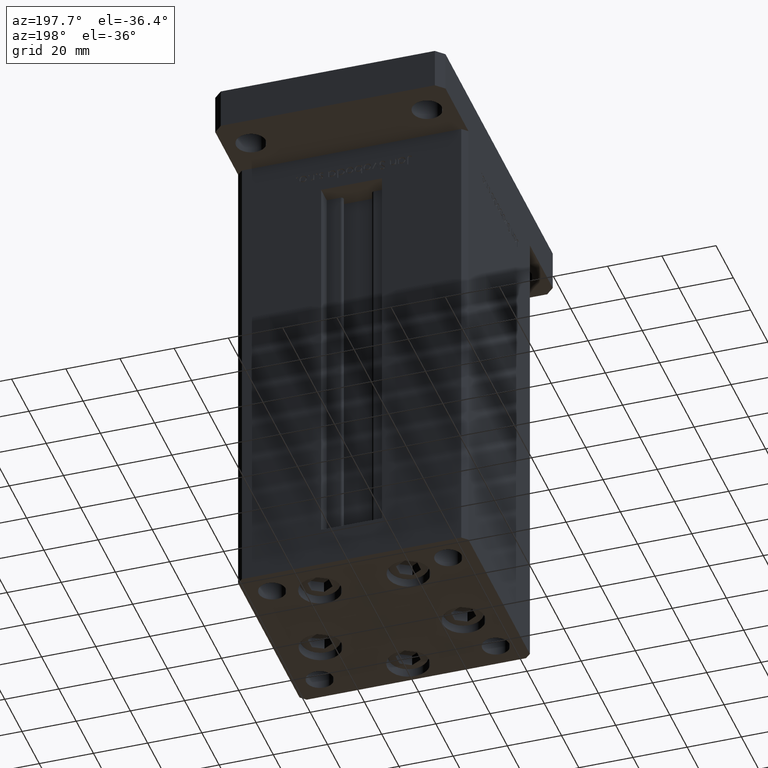
[diagram: clean part render]
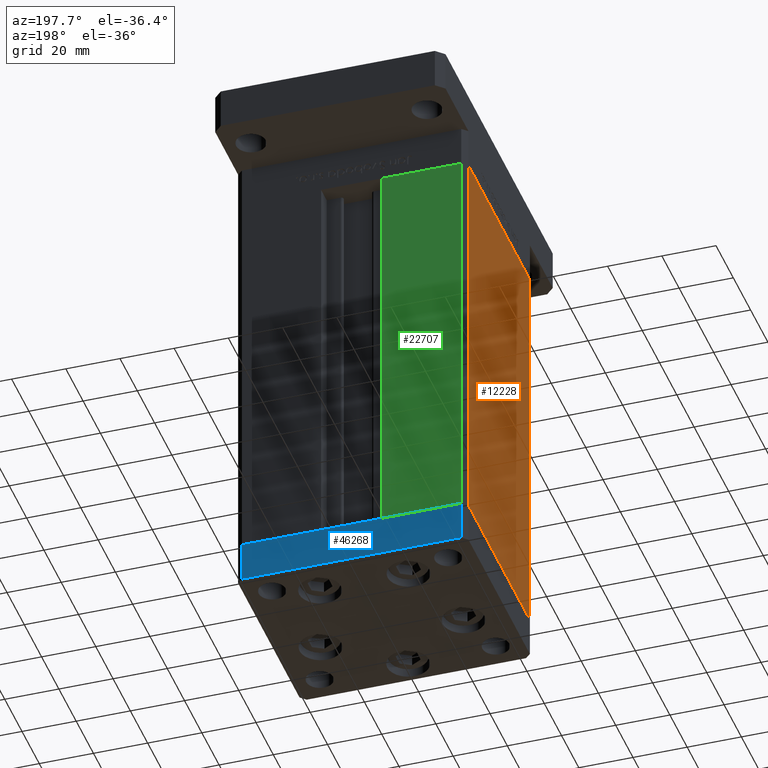
[diagram: same view with three faces highlighted in distinct colors, each labeled with its STEP entity id]
A machine part, auxiliary view with three faces highlighted in distinct colors.
Their STEP definitions:

[orange] entity #12228 — the highlighted planar face has unit normal (1, 0, 0).
#697 = VERTEX_POINT ( 'NONE', #13949 ) ;
#1500 = FACE_OUTER_BOUND ( 'NONE', #2649, .T. ) ;
#1995 = LINE ( 'NONE', #10388, #38906 ) ;
#2509 = DIRECTION ( 'NONE',  ( 2.931927001650941360E-16, -1.000000000000000000, 0.000000000000000000 ) ) ;
#2649 = EDGE_LOOP ( 'NONE', ( #13187, #16438, #18430, #20363 ) ) ;
#3210 = VERTEX_POINT ( 'NONE', #7617 ) ;
#3369 = PLANE ( 'NONE',  #52063 ) ;
#4156 = DIRECTION ( 'NONE',  ( -0.000000000000000000, -0.000000000000000000, -1.000000000000000000 ) ) ;
#6510 = CARTESIAN_POINT ( 'NONE',  ( -42.49999999999998579, -35.50000000000000711, 148.5000000000000000 ) ) ;
#6577 = LINE ( 'NONE', #43448, #39221 ) ;
#7183 = DIRECTION ( 'NONE',  ( 1.000000000000000000, 2.931927001650941360E-16, -0.000000000000000000 ) ) ;
#7617 = CARTESIAN_POINT ( 'NONE',  ( -42.50000000000000711, 35.50000000000001421, 148.5000000000000000 ) ) ;
#8780 = EDGE_CURVE ( 'NONE', #697, #48318, #1995, .T. ) ;
#9641 = VECTOR ( 'NONE', #33938, 1000.000000000000000 ) ;
#10388 = CARTESIAN_POINT ( 'NONE',  ( -42.50000000000000711, 35.50000000000001421, 0.000000000000000000 ) ) ;
#12228 = ADVANCED_FACE ( 'NONE', ( #1500 ), #3369, .F. ) ;
#12293 = CARTESIAN_POINT ( 'NONE',  ( -42.50000000000000711, 35.50000000000001421, 148.5000000000000000 ) ) ;
#13187 = ORIENTED_EDGE ( 'NONE', *, *, #8780, .T. ) ;
#13949 = CARTESIAN_POINT ( 'NONE',  ( -42.50000000000000711, 35.50000000000001421, 0.000000000000000000 ) ) ;
#14448 = VECTOR ( 'NONE', #4156, 1000.000000000000000 ) ;
#16438 = ORIENTED_EDGE ( 'NONE', *, *, #18972, .F. ) ;
#16597 = CARTESIAN_POINT ( 'NONE',  ( -42.49999999999998579, -35.50000000000000711, 148.5000000000000000 ) ) ;
#16864 = LINE ( 'NONE', #16597, #9641 ) ;
#18430 = ORIENTED_EDGE ( 'NONE', *, *, #22923, .F. ) ;
#18972 = EDGE_CURVE ( 'NONE', #23214, #48318, #16864, .T. ) ;
#20363 = ORIENTED_EDGE ( 'NONE', *, *, #38442, .T. ) ;
#22923 = EDGE_CURVE ( 'NONE', #3210, #23214, #6577, .T. ) ;
#23214 = VERTEX_POINT ( 'NONE', #6510 ) ;
#23414 = DIRECTION ( 'NONE',  ( 2.931927001650941360E-16, -1.000000000000000000, 0.000000000000000000 ) ) ;
#28211 = CARTESIAN_POINT ( 'NONE',  ( -42.49999999999998579, -35.50000000000000711, 0.000000000000000000 ) ) ;
#31608 = CARTESIAN_POINT ( 'NONE',  ( -42.50000000000000711, 35.50000000000001421, 148.5000000000000000 ) ) ;
#33938 = DIRECTION ( 'NONE',  ( -0.000000000000000000, -0.000000000000000000, -1.000000000000000000 ) ) ;
#38442 = EDGE_CURVE ( 'NONE', #3210, #697, #41294, .T. ) ;
#38906 = VECTOR ( 'NONE', #23414, 1000.000000000000000 ) ;
#39221 = VECTOR ( 'NONE', #2509, 1000.000000000000000 ) ;
#40509 = DIRECTION ( 'NONE',  ( -2.931927001650941360E-16, 1.000000000000000000, 0.000000000000000000 ) ) ;
#41294 = LINE ( 'NONE', #12293, #14448 ) ;
#43448 = CARTESIAN_POINT ( 'NONE',  ( -42.50000000000000711, 35.50000000000001421, 148.5000000000000000 ) ) ;
#48318 = VERTEX_POINT ( 'NONE', #28211 ) ;
#52063 = AXIS2_PLACEMENT_3D ( 'NONE', #31608, #7183, #40509 ) ;

[blue] entity #46268 — the highlighted planar face has unit normal (0, 1, 0).
#706 = EDGE_CURVE ( 'NONE', #18924, #43388, #27242, .T. ) ;
#1584 = DIRECTION ( 'NONE',  ( -1.000000000000000000, -3.426614273534436165E-16, 0.000000000000000000 ) ) ;
#6074 = DIRECTION ( 'NONE',  ( 0.000000000000000000, 0.000000000000000000, 1.000000000000000000 ) ) ;
#7394 = EDGE_CURVE ( 'NONE', #30791, #31664, #14610, .T. ) ;
#9276 = PLANE ( 'NONE',  #12089 ) ;
#10265 = CARTESIAN_POINT ( 'NONE',  ( 40.49999999999991473, 37.50000000000000711, -15.00000000000000000 ) ) ;
#12089 = AXIS2_PLACEMENT_3D ( 'NONE', #20959, #25826, #33691 ) ;
#12249 = LINE ( 'NONE', #38262, #13981 ) ;
#13626 = VECTOR ( 'NONE', #43764, 1000.000000000000000 ) ;
#13981 = VECTOR ( 'NONE', #29605, 1000.000000000000000 ) ;
#14278 = CARTESIAN_POINT ( 'NONE',  ( 40.49999999999991473, 37.50000000000000711, -15.00000000000000000 ) ) ;
#14610 = LINE ( 'NONE', #10265, #50929 ) ;
#15028 = LINE ( 'NONE', #31563, #33034 ) ;
#18924 = VERTEX_POINT ( 'NONE', #50211 ) ;
#18992 = EDGE_CURVE ( 'NONE', #31664, #43388, #12249, .T. ) ;
#19564 = EDGE_CURVE ( 'NONE', #30791, #18924, #15028, .T. ) ;
#20959 = CARTESIAN_POINT ( 'NONE',  ( 40.49999999999991473, 37.50000000000000711, -15.00000000000000000 ) ) ;
#25560 = FACE_OUTER_BOUND ( 'NONE', #42706, .T. ) ;
#25826 = DIRECTION ( 'NONE',  ( -3.426614273534436165E-16, 1.000000000000000000, 0.000000000000000000 ) ) ;
#26107 = ORIENTED_EDGE ( 'NONE', *, *, #19564, .F. ) ;
#27242 = LINE ( 'NONE', #30493, #13626 ) ;
#29605 = DIRECTION ( 'NONE',  ( 0.000000000000000000, 0.000000000000000000, 1.000000000000000000 ) ) ;
#29851 = ORIENTED_EDGE ( 'NONE', *, *, #706, .F. ) ;
#30493 = CARTESIAN_POINT ( 'NONE',  ( 40.49999999999991473, 37.50000000000000711, 0.000000000000000000 ) ) ;
#30791 = VERTEX_POINT ( 'NONE', #14278 ) ;
#31563 = CARTESIAN_POINT ( 'NONE',  ( 40.49999999999991473, 37.50000000000000711, -15.00000000000000000 ) ) ;
#31664 = VERTEX_POINT ( 'NONE', #40707 ) ;
#33034 = VECTOR ( 'NONE', #6074, 1000.000000000000000 ) ;
#33691 = DIRECTION ( 'NONE',  ( -1.000000000000000000, -3.426614273534436165E-16, 0.000000000000000000 ) ) ;
#38262 = CARTESIAN_POINT ( 'NONE',  ( -40.50000000000000711, 37.49999999999997868, -15.00000000000000000 ) ) ;
#40707 = CARTESIAN_POINT ( 'NONE',  ( -40.50000000000000711, 37.49999999999997868, -15.00000000000000000 ) ) ;
#42706 = EDGE_LOOP ( 'NONE', ( #29851, #26107, #53002, #53204 ) ) ;
#43388 = VERTEX_POINT ( 'NONE', #53377 ) ;
#43764 = DIRECTION ( 'NONE',  ( -1.000000000000000000, -3.426614273534436165E-16, 0.000000000000000000 ) ) ;
#46268 = ADVANCED_FACE ( 'NONE', ( #25560 ), #9276, .T. ) ;
#50211 = CARTESIAN_POINT ( 'NONE',  ( 40.49999999999991473, 37.50000000000000711, 0.000000000000000000 ) ) ;
#50929 = VECTOR ( 'NONE', #1584, 1000.000000000000000 ) ;
#53002 = ORIENTED_EDGE ( 'NONE', *, *, #7394, .T. ) ;
#53204 = ORIENTED_EDGE ( 'NONE', *, *, #18992, .T. ) ;
#53377 = CARTESIAN_POINT ( 'NONE',  ( -40.50000000000000711, 37.49999999999997868, 0.000000000000000000 ) ) ;

[green] entity #22707 — the highlighted planar face has unit normal (-0, -1, 0).
#586 = CARTESIAN_POINT ( 'NONE',  ( -11.25000000000000000, 37.50000000000000000, 0.000000000000000000 ) ) ;
#683 = VECTOR ( 'NONE', #26848, 1000.000000000000000 ) ;
#2202 = CARTESIAN_POINT ( 'NONE',  ( -11.25000000000000000, 37.50000000000000000, 148.5000000000000000 ) ) ;
#2435 = EDGE_CURVE ( 'NONE', #11369, #44290, #19723, .T. ) ;
#3727 = AXIS2_PLACEMENT_3D ( 'NONE', #28836, #12014, #28561 ) ;
#6084 = ORIENTED_EDGE ( 'NONE', *, *, #36235, .T. ) ;
#6439 = EDGE_CURVE ( 'NONE', #23453, #44290, #9510, .T. ) ;
#7510 = ORIENTED_EDGE ( 'NONE', *, *, #18805, .F. ) ;
#9164 = CARTESIAN_POINT ( 'NONE',  ( -40.50000000000000000, 37.50000000000000711, 148.5000000000000000 ) ) ;
#9510 = LINE ( 'NONE', #50202, #52647 ) ;
#11226 = PLANE ( 'NONE',  #3727 ) ;
#11369 = VERTEX_POINT ( 'NONE', #38219 ) ;
#12014 = DIRECTION ( 'NONE',  ( -2.372271420139223331E-16, -1.000000000000000000, 0.000000000000000000 ) ) ;
#14199 = CARTESIAN_POINT ( 'NONE',  ( -40.50000000000000000, 37.50000000000000711, 148.5000000000000000 ) ) ;
#17322 = ORIENTED_EDGE ( 'NONE', *, *, #2435, .F. ) ;
#18805 = EDGE_CURVE ( 'NONE', #23453, #47253, #51359, .T. ) ;
#19723 = LINE ( 'NONE', #44635, #683 ) ;
#19886 = CARTESIAN_POINT ( 'NONE',  ( -40.50000000000000000, 37.50000000000000711, 0.000000000000000000 ) ) ;
#22707 = ADVANCED_FACE ( 'NONE', ( #28299 ), #11226, .F. ) ;
#23453 = VERTEX_POINT ( 'NONE', #9164 ) ;
#26848 = DIRECTION ( 'NONE',  ( -0.000000000000000000, -0.000000000000000000, 1.000000000000000000 ) ) ;
#28299 = FACE_OUTER_BOUND ( 'NONE', #49470, .T. ) ;
#28561 = DIRECTION ( 'NONE',  ( 1.000000000000000000, -2.372271420139223331E-16, 0.000000000000000000 ) ) ;
#28836 = CARTESIAN_POINT ( 'NONE',  ( -11.25000000000000000, 37.50000000000000000, 148.5000000000000000 ) ) ;
#32870 = DIRECTION ( 'NONE',  ( -0.000000000000000000, -0.000000000000000000, -1.000000000000000000 ) ) ;
#33406 = DIRECTION ( 'NONE',  ( -1.000000000000000000, 2.372271420139223331E-16, 0.000000000000000000 ) ) ;
#33448 = VECTOR ( 'NONE', #33406, 1000.000000000000000 ) ;
#36167 = ORIENTED_EDGE ( 'NONE', *, *, #6439, .T. ) ;
#36235 = EDGE_CURVE ( 'NONE', #11369, #47253, #37721, .T. ) ;
#37721 = LINE ( 'NONE', #586, #33448 ) ;
#37980 = DIRECTION ( 'NONE',  ( 1.000000000000000000, 0.000000000000000000, 0.000000000000000000 ) ) ;
#38219 = CARTESIAN_POINT ( 'NONE',  ( -11.25000000000000000, 37.50000000000000000, 0.000000000000000000 ) ) ;
#38236 = VECTOR ( 'NONE', #32870, 1000.000000000000000 ) ;
#44290 = VERTEX_POINT ( 'NONE', #2202 ) ;
#44635 = CARTESIAN_POINT ( 'NONE',  ( -11.25000000000000000, 37.50000000000000000, 0.000000000000000000 ) ) ;
#47253 = VERTEX_POINT ( 'NONE', #19886 ) ;
#49470 = EDGE_LOOP ( 'NONE', ( #36167, #17322, #6084, #7510 ) ) ;
#50202 = CARTESIAN_POINT ( 'NONE',  ( -11.25000000000000000, 37.50000000000000000, 148.5000000000000000 ) ) ;
#51359 = LINE ( 'NONE', #14199, #38236 ) ;
#52647 = VECTOR ( 'NONE', #37980, 1000.000000000000000 ) ;